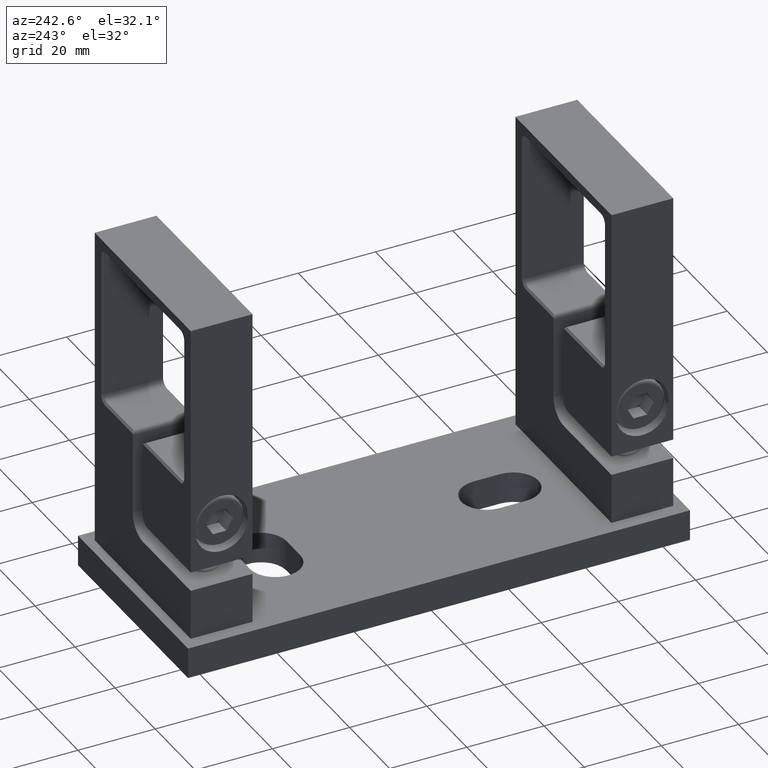
[diagram: clean part render]
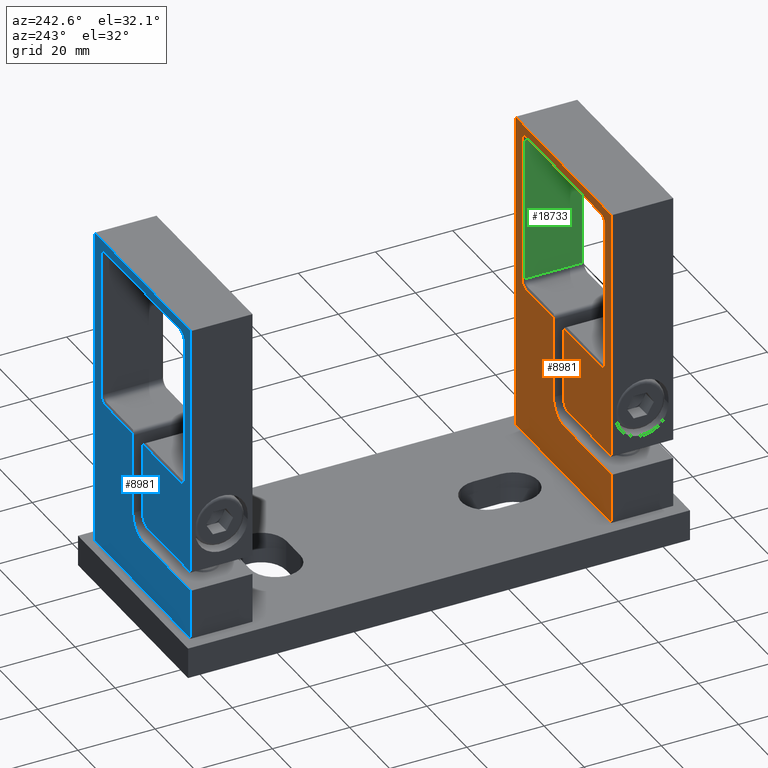
[diagram: same view with three faces highlighted in distinct colors, each labeled with its STEP entity id]
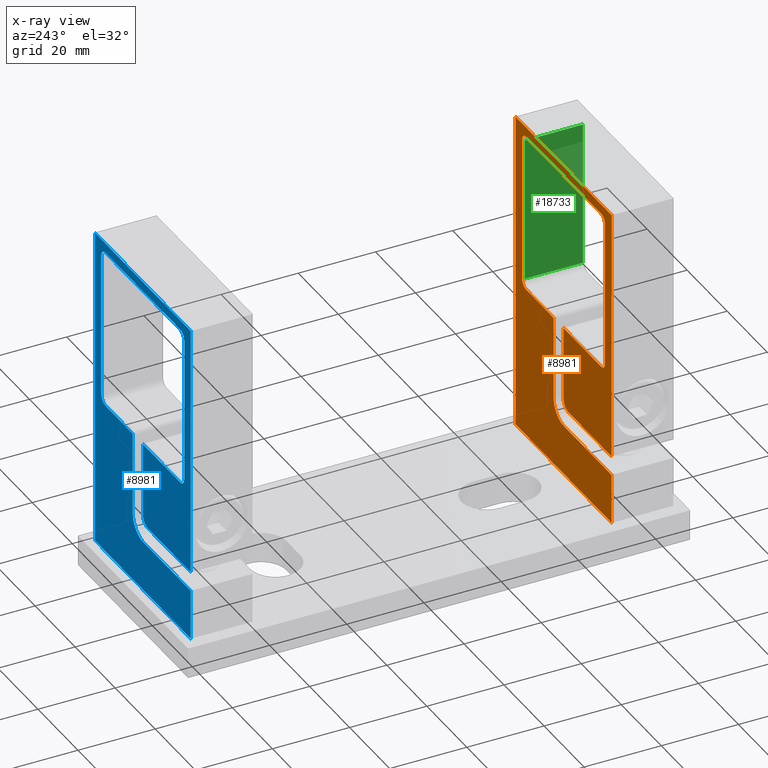
[diagram: x-ray of the same camera — body ghosted, the three highlighted faces saturated]
A machine part, auxiliary view with three faces highlighted in distinct colors.
The next image is the same camera in x-ray (body ghosted, the three faces saturated) — at least one of them is partly hidden behind the body in this view.
Their STEP definitions:

[orange] entity #8981 — the highlighted planar face has unit normal (0, 1, 0).
#47 = CARTESIAN_POINT ( 'NONE',  ( -7.999999999999992900, 20.50000000000001800, -3.081487911019577400E-030 ) ) ;
#51 = CARTESIAN_POINT ( 'NONE',  ( -8.000000000000000000, 41.50000000000000700, -20.74999999999992200 ) ) ;
#127 = LINE ( 'NONE', #12391, #13959 ) ;
#136 = AXIS2_PLACEMENT_3D ( 'NONE', #10202, #6392, #18962 ) ;
#158 = VERTEX_POINT ( 'NONE', #13842 ) ;
#331 = CIRCLE ( 'NONE', #15895, 2.000000000000012000 ) ;
#516 = VERTEX_POINT ( 'NONE', #565 ) ;
#565 = CARTESIAN_POINT ( 'NONE',  ( -7.999999999999986700, 83.49999999999998600, 24.00000000000000700 ) ) ;
#724 = LINE ( 'NONE', #12388, #19035 ) ;
#776 = EDGE_CURVE ( 'NONE', #8278, #15321, #17153, .T. ) ;
#828 = VERTEX_POINT ( 'NONE', #4010 ) ;
#855 = ORIENTED_EDGE ( 'NONE', *, *, #16438, .T. ) ;
#875 = CARTESIAN_POINT ( 'NONE',  ( -7.999999999999986700, 12.99999999999999800, 23.99999999999999300 ) ) ;
#1247 = CARTESIAN_POINT ( 'NONE',  ( -7.999999999999992900, 38.99999999999999300, -4.999999999999982200 ) ) ;
#1249 = VECTOR ( 'NONE', #20744, 1000.000000000000000 ) ;
#1380 = DIRECTION ( 'NONE',  ( 1.000000000000000000, -0.0000000000000000000, -0.0000000000000000000 ) ) ;
#1415 = CARTESIAN_POINT ( 'NONE',  ( -7.999999999999992900, 18.00000000000004300, -4.999999999999984900 ) ) ;
#1452 = CIRCLE ( 'NONE', #4162, 2.499999999999996000 ) ;
#1491 = CARTESIAN_POINT ( 'NONE',  ( -7.999999999999992900, 78.99999999999998600, 20.75000000000001400 ) ) ;
#1494 = CARTESIAN_POINT ( 'NONE',  ( -7.999999999999992900, 38.99999999999999300, -4.999999999999981300 ) ) ;
#1666 = CARTESIAN_POINT ( 'NONE',  ( -7.999999999999992900, 18.00000000000000400, -2.602085213965217000E-015 ) ) ;
#1727 = ORIENTED_EDGE ( 'NONE', *, *, #14107, .T. ) ;
#2451 = ORIENTED_EDGE ( 'NONE', *, *, #7532, .F. ) ;
#2458 = CIRCLE ( 'NONE', #15071, 2.000000000000012000 ) ;
#2579 = EDGE_CURVE ( 'NONE', #516, #10647, #724, .T. ) ;
#2659 = DIRECTION ( 'NONE',  ( 0.0000000000000000000, 3.909236002201266000E-016, -1.000000000000000000 ) ) ;
#2717 = CARTESIAN_POINT ( 'NONE',  ( -7.999999999999992900, 13.00000000000001100, 3.209238430557084300E-014 ) ) ;
#2856 = DIRECTION ( 'NONE',  ( 1.000000000000000000, -0.0000000000000000000, -0.0000000000000000000 ) ) ;
#2961 = VERTEX_POINT ( 'NONE', #12130 ) ;
#3020 = LINE ( 'NONE', #21508, #16578 ) ;
#3156 = EDGE_CURVE ( 'NONE', #16562, #828, #10618, .T. ) ;
#3199 = DIRECTION ( 'NONE',  ( 0.0000000000000000000, 0.0000000000000000000, 1.000000000000000000 ) ) ;
#3238 = CARTESIAN_POINT ( 'NONE',  ( -7.999999999999986700, 0.0000000000000000000, 24.00000000000000000 ) ) ;
#3351 = CIRCLE ( 'NONE', #15704, 0.9999999999999988900 ) ;
#3413 = EDGE_CURVE ( 'NONE', #8278, #12880, #14241, .T. ) ;
#3422 = VECTOR ( 'NONE', #12767, 1000.000000000000000 ) ;
#3639 = CARTESIAN_POINT ( 'NONE',  ( -7.999999999999992900, 39.49999999999997900, -5.133974596215535000 ) ) ;
#3844 = ORIENTED_EDGE ( 'NONE', *, *, #3413, .F. ) ;
#4010 = CARTESIAN_POINT ( 'NONE',  ( -7.999999999999992900, 39.00000000000000700, -3.081487911019577400E-030 ) ) ;
#4067 = VECTOR ( 'NONE', #10418, 1000.000000000000000 ) ;
#4162 = AXIS2_PLACEMENT_3D ( 'NONE', #11009, #20133, #7449 ) ;
#4545 = AXIS2_PLACEMENT_3D ( 'NONE', #8649, #1380, #21088 ) ;
#4730 = ORIENTED_EDGE ( 'NONE', *, *, #8043, .F. ) ;
#4788 = VECTOR ( 'NONE', #2659, 1000.000000000000000 ) ;
#5042 = CARTESIAN_POINT ( 'NONE',  ( -8.000000000000000000, 39.49999999999997900, -18.74999999999989300 ) ) ;
#5256 = DIRECTION ( 'NONE',  ( 0.0000000000000000000, -1.000000000000000000, -1.059373115100338400E-016 ) ) ;
#5692 = LINE ( 'NONE', #14291, #9367 ) ;
#5950 = CARTESIAN_POINT ( 'NONE',  ( -8.000000000000000000, 83.49999999999998600, -23.99999999999991800 ) ) ;
#6044 = ORIENTED_EDGE ( 'NONE', *, *, #15751, .F. ) ;
#6392 = DIRECTION ( 'NONE',  ( -1.000000000000000000, 0.0000000000000000000, 0.0000000000000000000 ) ) ;
#6435 = DIRECTION ( 'NONE',  ( 1.000000000000000000, 0.0000000000000000000, 0.0000000000000000000 ) ) ;
#6512 = LINE ( 'NONE', #15362, #4788 ) ;
#6533 = VECTOR ( 'NONE', #13878, 1000.000000000000000 ) ;
#6729 = EDGE_LOOP ( 'NONE', ( #1727, #20639, #17453, #15729, #15924, #14672, #21736, #20240, #6044, #2451, #14080, #4730, #16899, #9741, #3844, #9436, #13284, #22401, #10238, #11418, #855, #9876 ) ) ;
#6759 = VERTEX_POINT ( 'NONE', #8179 ) ;
#6836 = DIRECTION ( 'NONE',  ( 0.0000000000000000000, 0.0000000000000000000, -1.000000000000000000 ) ) ;
#7449 = DIRECTION ( 'NONE',  ( 0.0000000000000000000, 0.0000000000000000000, 1.000000000000000000 ) ) ;
#7532 = EDGE_CURVE ( 'NONE', #158, #9015, #19182, .T. ) ;
#7722 = LINE ( 'NONE', #21470, #15859 ) ;
#7783 = DIRECTION ( 'NONE',  ( 0.0000000000000000000, 0.0000000000000000000, 1.000000000000000000 ) ) ;
#7969 = VECTOR ( 'NONE', #6836, 1000.000000000000000 ) ;
#8043 = EDGE_CURVE ( 'NONE', #17749, #19170, #11916, .T. ) ;
#8179 = CARTESIAN_POINT ( 'NONE',  ( -7.999999999999952000, 81.00000000000001400, 18.74999999999996400 ) ) ;
#8251 = VERTEX_POINT ( 'NONE', #10716 ) ;
#8278 = VERTEX_POINT ( 'NONE', #3639 ) ;
#8649 = CARTESIAN_POINT ( 'NONE',  ( -8.000000000000000000, 78.99999999999998600, -18.74999999999990400 ) ) ;
#8981 = ADVANCED_FACE ( 'NONE', ( #17205 ), #18888, .T. ) ;
#9004 = EDGE_CURVE ( 'NONE', #12453, #17172, #6512, .T. ) ;
#9015 = VERTEX_POINT ( 'NONE', #21118 ) ;
#9160 = CARTESIAN_POINT ( 'NONE',  ( -7.999999999999992900, 39.49999999999999300, 0.1339745962155532700 ) ) ;
#9367 = VECTOR ( 'NONE', #10473, 1000.000000000000000 ) ;
#9384 = CARTESIAN_POINT ( 'NONE',  ( -7.999999999999986700, 18.00000000000000400, 24.00000000000000000 ) ) ;
#9436 = ORIENTED_EDGE ( 'NONE', *, *, #776, .T. ) ;
#9602 = EDGE_CURVE ( 'NONE', #828, #17172, #3351, .T. ) ;
#9693 = CARTESIAN_POINT ( 'NONE',  ( -7.999999999999992900, 39.00000000000000700, -5.999999999999982200 ) ) ;
#9741 = ORIENTED_EDGE ( 'NONE', *, *, #20960, .F. ) ;
#9876 = ORIENTED_EDGE ( 'NONE', *, *, #14280, .T. ) ;
#10197 = DIRECTION ( 'NONE',  ( 0.0000000000000000000, 0.0000000000000000000, 1.000000000000000000 ) ) ;
#10202 = CARTESIAN_POINT ( 'NONE',  ( -7.999999999999992900, 20.49999999999998900, 2.499999999999991100 ) ) ;
#10238 = ORIENTED_EDGE ( 'NONE', *, *, #14663, .T. ) ;
#10418 = DIRECTION ( 'NONE',  ( 0.0000000000000000000, 1.000000000000000000, 0.0000000000000000000 ) ) ;
#10422 = VERTEX_POINT ( 'NONE', #1491 ) ;
#10473 = DIRECTION ( 'NONE',  ( 0.0000000000000000000, 0.0000000000000000000, 1.000000000000000000 ) ) ;
#10544 = CARTESIAN_POINT ( 'NONE',  ( -7.999999999999992900, 20.50000000000001800, 4.336808689941987200E-016 ) ) ;
#10576 = EDGE_CURVE ( 'NONE', #19170, #158, #3020, .T. ) ;
#10618 = LINE ( 'NONE', #47, #4067 ) ;
#10647 = VERTEX_POINT ( 'NONE', #9384 ) ;
#10716 = CARTESIAN_POINT ( 'NONE',  ( -8.000000000000000000, 83.49999999999998600, -23.99999999999991800 ) ) ;
#11009 = CARTESIAN_POINT ( 'NONE',  ( -7.999999999999992900, 20.49999999999998900, 2.499999999999991100 ) ) ;
#11418 = ORIENTED_EDGE ( 'NONE', *, *, #16580, .T. ) ;
#11458 = LINE ( 'NONE', #5950, #21190 ) ;
#11916 = LINE ( 'NONE', #2717, #14972 ) ;
#12130 = CARTESIAN_POINT ( 'NONE',  ( -8.000000000000000000, 78.99999999999998600, -20.74999999999992200 ) ) ;
#12318 = CARTESIAN_POINT ( 'NONE',  ( -8.000000000000000000, 41.50000000000000700, -18.74999999999990400 ) ) ;
#12324 = CARTESIAN_POINT ( 'NONE',  ( -7.999999999999992900, 39.00000000000000700, 0.9999999999999983300 ) ) ;
#12388 = CARTESIAN_POINT ( 'NONE',  ( -7.999999999999986700, 83.49999999999998600, 24.00000000000000700 ) ) ;
#12391 = CARTESIAN_POINT ( 'NONE',  ( -7.999999999999992900, 41.50000000000000700, 20.75000000000001400 ) ) ;
#12453 = VERTEX_POINT ( 'NONE', #12539 ) ;
#12539 = CARTESIAN_POINT ( 'NONE',  ( -7.999999999999952000, 39.49999999999997900, 18.74999999999997200 ) ) ;
#12573 = LINE ( 'NONE', #15383, #1249 ) ;
#12767 = DIRECTION ( 'NONE',  ( 0.0000000000000000000, 1.000000000000000000, 0.0000000000000000000 ) ) ;
#12880 = VERTEX_POINT ( 'NONE', #1494 ) ;
#13004 = CARTESIAN_POINT ( 'NONE',  ( -8.000000000000000000, 78.99999999999998600, -20.74999999999992200 ) ) ;
#13284 = ORIENTED_EDGE ( 'NONE', *, *, #23098, .T. ) ;
#13621 = DIRECTION ( 'NONE',  ( 0.0000000000000000000, 0.0000000000000000000, 1.000000000000000000 ) ) ;
#13783 = VECTOR ( 'NONE', #16222, 1000.000000000000000 ) ;
#13842 = CARTESIAN_POINT ( 'NONE',  ( -7.999999999999986700, 0.0000000000000000000, 24.00000000000000000 ) ) ;
#13878 = DIRECTION ( 'NONE',  ( 0.0000000000000000000, -1.000000000000000000, -1.239088197126290100E-016 ) ) ;
#13959 = VECTOR ( 'NONE', #18250, 1000.000000000000000 ) ;
#14080 = ORIENTED_EDGE ( 'NONE', *, *, #10576, .F. ) ;
#14107 = EDGE_CURVE ( 'NONE', #20828, #12453, #15920, .T. ) ;
#14230 = DIRECTION ( 'NONE',  ( 2.736911063134408900E-048, 1.000000000000000000, -1.246507886929438800E-016 ) ) ;
#14241 = CIRCLE ( 'NONE', #20253, 0.9999999999999991100 ) ;
#14280 = EDGE_CURVE ( 'NONE', #10422, #20828, #127, .T. ) ;
#14290 = DIRECTION ( 'NONE',  ( 0.0000000000000000000, 0.0000000000000000000, -1.000000000000000000 ) ) ;
#14291 = CARTESIAN_POINT ( 'NONE',  ( -7.999999999999952000, 81.00000000000001400, 18.74999999999997200 ) ) ;
#14663 = EDGE_CURVE ( 'NONE', #2961, #20312, #19268, .T. ) ;
#14672 = ORIENTED_EDGE ( 'NONE', *, *, #17719, .F. ) ;
#14972 = VECTOR ( 'NONE', #15342, 1000.000000000000000 ) ;
#15071 = AXIS2_PLACEMENT_3D ( 'NONE', #12318, #17795, #3199 ) ;
#15321 = VERTEX_POINT ( 'NONE', #17572 ) ;
#15342 = DIRECTION ( 'NONE',  ( 0.0000000000000000000, -1.445602896647343800E-016, 1.000000000000000000 ) ) ;
#15362 = CARTESIAN_POINT ( 'NONE',  ( -7.999999999999992900, 39.49999999999999300, 1.000000000000005100 ) ) ;
#15383 = CARTESIAN_POINT ( 'NONE',  ( -7.999999999999986700, 18.00000000000000400, 24.00000000000000000 ) ) ;
#15402 = CARTESIAN_POINT ( 'NONE',  ( -7.999999999999952000, 78.99999999999998600, 18.74999999999997900 ) ) ;
#15520 = CARTESIAN_POINT ( 'NONE',  ( -7.999999999999992900, 41.50000000000000700, 20.75000000000001400 ) ) ;
#15704 = AXIS2_PLACEMENT_3D ( 'NONE', #12324, #17955, #23192 ) ;
#15729 = ORIENTED_EDGE ( 'NONE', *, *, #3156, .F. ) ;
#15751 = EDGE_CURVE ( 'NONE', #9015, #8251, #7722, .T. ) ;
#15856 = VERTEX_POINT ( 'NONE', #20310 ) ;
#15859 = VECTOR ( 'NONE', #14230, 1000.000000000000000 ) ;
#15895 = AXIS2_PLACEMENT_3D ( 'NONE', #15402, #2856, #22678 ) ;
#15920 = CIRCLE ( 'NONE', #21092, 2.000000000000012000 ) ;
#15924 = ORIENTED_EDGE ( 'NONE', *, *, #19885, .F. ) ;
#16222 = DIRECTION ( 'NONE',  ( 0.0000000000000000000, 0.0000000000000000000, -1.000000000000000000 ) ) ;
#16438 = EDGE_CURVE ( 'NONE', #6759, #10422, #331, .T. ) ;
#16562 = VERTEX_POINT ( 'NONE', #10544 ) ;
#16578 = VECTOR ( 'NONE', #23337, 1000.000000000000000 ) ;
#16580 = EDGE_CURVE ( 'NONE', #20312, #6759, #5692, .T. ) ;
#16899 = ORIENTED_EDGE ( 'NONE', *, *, #18833, .F. ) ;
#17153 = LINE ( 'NONE', #5042, #13783 ) ;
#17172 = VERTEX_POINT ( 'NONE', #9160 ) ;
#17205 = FACE_OUTER_BOUND ( 'NONE', #6729, .T. ) ;
#17453 = ORIENTED_EDGE ( 'NONE', *, *, #9602, .F. ) ;
#17572 = CARTESIAN_POINT ( 'NONE',  ( -8.000000000000000000, 39.49999999999997900, -18.74999999999989300 ) ) ;
#17643 = EDGE_CURVE ( 'NONE', #8251, #516, #11458, .T. ) ;
#17719 = EDGE_CURVE ( 'NONE', #10647, #15856, #12573, .T. ) ;
#17749 = VERTEX_POINT ( 'NONE', #18979 ) ;
#17795 = DIRECTION ( 'NONE',  ( 1.000000000000000000, -0.0000000000000000000, -0.0000000000000000000 ) ) ;
#17955 = DIRECTION ( 'NONE',  ( 1.000000000000000000, 0.0000000000000000000, 0.0000000000000000000 ) ) ;
#18250 = DIRECTION ( 'NONE',  ( 0.0000000000000000000, -1.000000000000000000, -0.0000000000000000000 ) ) ;
#18833 = EDGE_CURVE ( 'NONE', #20313, #17749, #21161, .T. ) ;
#18888 = PLANE ( 'NONE',  #136 ) ;
#18962 = DIRECTION ( 'NONE',  ( 0.0000000000000000000, 0.0000000000000000000, 1.000000000000000000 ) ) ;
#18979 = CARTESIAN_POINT ( 'NONE',  ( -7.999999999999992900, 13.00000000000001100, 3.384353667340022400E-014 ) ) ;
#19035 = VECTOR ( 'NONE', #5256, 1000.000000000000000 ) ;
#19170 = VERTEX_POINT ( 'NONE', #875 ) ;
#19182 = LINE ( 'NONE', #3238, #7969 ) ;
#19258 = DIRECTION ( 'NONE',  ( 1.000000000000000000, -0.0000000000000000000, -0.0000000000000000000 ) ) ;
#19268 = CIRCLE ( 'NONE', #4545, 2.000000000000012000 ) ;
#19297 = EDGE_CURVE ( 'NONE', #22520, #2961, #20587, .T. ) ;
#19525 = DIRECTION ( 'NONE',  ( -1.000000000000000000, 0.0000000000000000000, 0.0000000000000000000 ) ) ;
#19885 = EDGE_CURVE ( 'NONE', #15856, #16562, #1452, .T. ) ;
#20133 = DIRECTION ( 'NONE',  ( 1.000000000000000000, 0.0000000000000000000, 0.0000000000000000000 ) ) ;
#20240 = ORIENTED_EDGE ( 'NONE', *, *, #17643, .F. ) ;
#20253 = AXIS2_PLACEMENT_3D ( 'NONE', #9693, #6435, #13621 ) ;
#20310 = CARTESIAN_POINT ( 'NONE',  ( -7.999999999999992900, 18.00000000000000400, 2.500000000000008400 ) ) ;
#20312 = VERTEX_POINT ( 'NONE', #21037 ) ;
#20313 = VERTEX_POINT ( 'NONE', #1415 ) ;
#20587 = LINE ( 'NONE', #13004, #3422 ) ;
#20639 = ORIENTED_EDGE ( 'NONE', *, *, #9004, .T. ) ;
#20744 = DIRECTION ( 'NONE',  ( 0.0000000000000000000, 0.0000000000000000000, -1.000000000000000000 ) ) ;
#20828 = VERTEX_POINT ( 'NONE', #15520 ) ;
#20960 = EDGE_CURVE ( 'NONE', #12880, #20313, #22819, .T. ) ;
#21037 = CARTESIAN_POINT ( 'NONE',  ( -8.000000000000000000, 81.00000000000001400, -18.74999999999989300 ) ) ;
#21088 = DIRECTION ( 'NONE',  ( 0.0000000000000000000, 0.0000000000000000000, 1.000000000000000000 ) ) ;
#21092 = AXIS2_PLACEMENT_3D ( 'NONE', #22790, #19258, #10197 ) ;
#21118 = CARTESIAN_POINT ( 'NONE',  ( -8.000000000000000000, 0.0000000000000000000, -23.99999999999990400 ) ) ;
#21161 = CIRCLE ( 'NONE', #22850, 4.999999999999991100 ) ;
#21190 = VECTOR ( 'NONE', #7783, 1000.000000000000000 ) ;
#21470 = CARTESIAN_POINT ( 'NONE',  ( -8.000000000000000000, 0.0000000000000000000, -23.99999999999990400 ) ) ;
#21508 = CARTESIAN_POINT ( 'NONE',  ( -7.999999999999986700, 12.99999999999999800, 23.99999999999999300 ) ) ;
#21736 = ORIENTED_EDGE ( 'NONE', *, *, #2579, .F. ) ;
#22401 = ORIENTED_EDGE ( 'NONE', *, *, #19297, .T. ) ;
#22520 = VERTEX_POINT ( 'NONE', #51 ) ;
#22678 = DIRECTION ( 'NONE',  ( 0.0000000000000000000, 0.0000000000000000000, 1.000000000000000000 ) ) ;
#22790 = CARTESIAN_POINT ( 'NONE',  ( -7.999999999999952000, 41.50000000000000700, 18.74999999999997900 ) ) ;
#22819 = LINE ( 'NONE', #1247, #6533 ) ;
#22850 = AXIS2_PLACEMENT_3D ( 'NONE', #1666, #19525, #14290 ) ;
#23098 = EDGE_CURVE ( 'NONE', #15321, #22520, #2458, .T. ) ;
#23192 = DIRECTION ( 'NONE',  ( 0.0000000000000000000, 0.0000000000000000000, -1.000000000000000000 ) ) ;
#23337 = DIRECTION ( 'NONE',  ( 2.189528850507527200E-047, -1.000000000000000000, 5.337610695313239600E-016 ) ) ;

[blue] entity #8981 — the highlighted planar face has unit normal (0, 1, 0).
#47 = CARTESIAN_POINT ( 'NONE',  ( -7.999999999999992900, 20.50000000000001800, -3.081487911019577400E-030 ) ) ;
#51 = CARTESIAN_POINT ( 'NONE',  ( -8.000000000000000000, 41.50000000000000700, -20.74999999999992200 ) ) ;
#127 = LINE ( 'NONE', #12391, #13959 ) ;
#136 = AXIS2_PLACEMENT_3D ( 'NONE', #10202, #6392, #18962 ) ;
#158 = VERTEX_POINT ( 'NONE', #13842 ) ;
#331 = CIRCLE ( 'NONE', #15895, 2.000000000000012000 ) ;
#516 = VERTEX_POINT ( 'NONE', #565 ) ;
#565 = CARTESIAN_POINT ( 'NONE',  ( -7.999999999999986700, 83.49999999999998600, 24.00000000000000700 ) ) ;
#724 = LINE ( 'NONE', #12388, #19035 ) ;
#776 = EDGE_CURVE ( 'NONE', #8278, #15321, #17153, .T. ) ;
#828 = VERTEX_POINT ( 'NONE', #4010 ) ;
#855 = ORIENTED_EDGE ( 'NONE', *, *, #16438, .T. ) ;
#875 = CARTESIAN_POINT ( 'NONE',  ( -7.999999999999986700, 12.99999999999999800, 23.99999999999999300 ) ) ;
#1247 = CARTESIAN_POINT ( 'NONE',  ( -7.999999999999992900, 38.99999999999999300, -4.999999999999982200 ) ) ;
#1249 = VECTOR ( 'NONE', #20744, 1000.000000000000000 ) ;
#1380 = DIRECTION ( 'NONE',  ( 1.000000000000000000, -0.0000000000000000000, -0.0000000000000000000 ) ) ;
#1415 = CARTESIAN_POINT ( 'NONE',  ( -7.999999999999992900, 18.00000000000004300, -4.999999999999984900 ) ) ;
#1452 = CIRCLE ( 'NONE', #4162, 2.499999999999996000 ) ;
#1491 = CARTESIAN_POINT ( 'NONE',  ( -7.999999999999992900, 78.99999999999998600, 20.75000000000001400 ) ) ;
#1494 = CARTESIAN_POINT ( 'NONE',  ( -7.999999999999992900, 38.99999999999999300, -4.999999999999981300 ) ) ;
#1666 = CARTESIAN_POINT ( 'NONE',  ( -7.999999999999992900, 18.00000000000000400, -2.602085213965217000E-015 ) ) ;
#1727 = ORIENTED_EDGE ( 'NONE', *, *, #14107, .T. ) ;
#2451 = ORIENTED_EDGE ( 'NONE', *, *, #7532, .F. ) ;
#2458 = CIRCLE ( 'NONE', #15071, 2.000000000000012000 ) ;
#2579 = EDGE_CURVE ( 'NONE', #516, #10647, #724, .T. ) ;
#2659 = DIRECTION ( 'NONE',  ( 0.0000000000000000000, 3.909236002201266000E-016, -1.000000000000000000 ) ) ;
#2717 = CARTESIAN_POINT ( 'NONE',  ( -7.999999999999992900, 13.00000000000001100, 3.209238430557084300E-014 ) ) ;
#2856 = DIRECTION ( 'NONE',  ( 1.000000000000000000, -0.0000000000000000000, -0.0000000000000000000 ) ) ;
#2961 = VERTEX_POINT ( 'NONE', #12130 ) ;
#3020 = LINE ( 'NONE', #21508, #16578 ) ;
#3156 = EDGE_CURVE ( 'NONE', #16562, #828, #10618, .T. ) ;
#3199 = DIRECTION ( 'NONE',  ( 0.0000000000000000000, 0.0000000000000000000, 1.000000000000000000 ) ) ;
#3238 = CARTESIAN_POINT ( 'NONE',  ( -7.999999999999986700, 0.0000000000000000000, 24.00000000000000000 ) ) ;
#3351 = CIRCLE ( 'NONE', #15704, 0.9999999999999988900 ) ;
#3413 = EDGE_CURVE ( 'NONE', #8278, #12880, #14241, .T. ) ;
#3422 = VECTOR ( 'NONE', #12767, 1000.000000000000000 ) ;
#3639 = CARTESIAN_POINT ( 'NONE',  ( -7.999999999999992900, 39.49999999999997900, -5.133974596215535000 ) ) ;
#3844 = ORIENTED_EDGE ( 'NONE', *, *, #3413, .F. ) ;
#4010 = CARTESIAN_POINT ( 'NONE',  ( -7.999999999999992900, 39.00000000000000700, -3.081487911019577400E-030 ) ) ;
#4067 = VECTOR ( 'NONE', #10418, 1000.000000000000000 ) ;
#4162 = AXIS2_PLACEMENT_3D ( 'NONE', #11009, #20133, #7449 ) ;
#4545 = AXIS2_PLACEMENT_3D ( 'NONE', #8649, #1380, #21088 ) ;
#4730 = ORIENTED_EDGE ( 'NONE', *, *, #8043, .F. ) ;
#4788 = VECTOR ( 'NONE', #2659, 1000.000000000000000 ) ;
#5042 = CARTESIAN_POINT ( 'NONE',  ( -8.000000000000000000, 39.49999999999997900, -18.74999999999989300 ) ) ;
#5256 = DIRECTION ( 'NONE',  ( 0.0000000000000000000, -1.000000000000000000, -1.059373115100338400E-016 ) ) ;
#5692 = LINE ( 'NONE', #14291, #9367 ) ;
#5950 = CARTESIAN_POINT ( 'NONE',  ( -8.000000000000000000, 83.49999999999998600, -23.99999999999991800 ) ) ;
#6044 = ORIENTED_EDGE ( 'NONE', *, *, #15751, .F. ) ;
#6392 = DIRECTION ( 'NONE',  ( -1.000000000000000000, 0.0000000000000000000, 0.0000000000000000000 ) ) ;
#6435 = DIRECTION ( 'NONE',  ( 1.000000000000000000, 0.0000000000000000000, 0.0000000000000000000 ) ) ;
#6512 = LINE ( 'NONE', #15362, #4788 ) ;
#6533 = VECTOR ( 'NONE', #13878, 1000.000000000000000 ) ;
#6729 = EDGE_LOOP ( 'NONE', ( #1727, #20639, #17453, #15729, #15924, #14672, #21736, #20240, #6044, #2451, #14080, #4730, #16899, #9741, #3844, #9436, #13284, #22401, #10238, #11418, #855, #9876 ) ) ;
#6759 = VERTEX_POINT ( 'NONE', #8179 ) ;
#6836 = DIRECTION ( 'NONE',  ( 0.0000000000000000000, 0.0000000000000000000, -1.000000000000000000 ) ) ;
#7449 = DIRECTION ( 'NONE',  ( 0.0000000000000000000, 0.0000000000000000000, 1.000000000000000000 ) ) ;
#7532 = EDGE_CURVE ( 'NONE', #158, #9015, #19182, .T. ) ;
#7722 = LINE ( 'NONE', #21470, #15859 ) ;
#7783 = DIRECTION ( 'NONE',  ( 0.0000000000000000000, 0.0000000000000000000, 1.000000000000000000 ) ) ;
#7969 = VECTOR ( 'NONE', #6836, 1000.000000000000000 ) ;
#8043 = EDGE_CURVE ( 'NONE', #17749, #19170, #11916, .T. ) ;
#8179 = CARTESIAN_POINT ( 'NONE',  ( -7.999999999999952000, 81.00000000000001400, 18.74999999999996400 ) ) ;
#8251 = VERTEX_POINT ( 'NONE', #10716 ) ;
#8278 = VERTEX_POINT ( 'NONE', #3639 ) ;
#8649 = CARTESIAN_POINT ( 'NONE',  ( -8.000000000000000000, 78.99999999999998600, -18.74999999999990400 ) ) ;
#8981 = ADVANCED_FACE ( 'NONE', ( #17205 ), #18888, .T. ) ;
#9004 = EDGE_CURVE ( 'NONE', #12453, #17172, #6512, .T. ) ;
#9015 = VERTEX_POINT ( 'NONE', #21118 ) ;
#9160 = CARTESIAN_POINT ( 'NONE',  ( -7.999999999999992900, 39.49999999999999300, 0.1339745962155532700 ) ) ;
#9367 = VECTOR ( 'NONE', #10473, 1000.000000000000000 ) ;
#9384 = CARTESIAN_POINT ( 'NONE',  ( -7.999999999999986700, 18.00000000000000400, 24.00000000000000000 ) ) ;
#9436 = ORIENTED_EDGE ( 'NONE', *, *, #776, .T. ) ;
#9602 = EDGE_CURVE ( 'NONE', #828, #17172, #3351, .T. ) ;
#9693 = CARTESIAN_POINT ( 'NONE',  ( -7.999999999999992900, 39.00000000000000700, -5.999999999999982200 ) ) ;
#9741 = ORIENTED_EDGE ( 'NONE', *, *, #20960, .F. ) ;
#9876 = ORIENTED_EDGE ( 'NONE', *, *, #14280, .T. ) ;
#10197 = DIRECTION ( 'NONE',  ( 0.0000000000000000000, 0.0000000000000000000, 1.000000000000000000 ) ) ;
#10202 = CARTESIAN_POINT ( 'NONE',  ( -7.999999999999992900, 20.49999999999998900, 2.499999999999991100 ) ) ;
#10238 = ORIENTED_EDGE ( 'NONE', *, *, #14663, .T. ) ;
#10418 = DIRECTION ( 'NONE',  ( 0.0000000000000000000, 1.000000000000000000, 0.0000000000000000000 ) ) ;
#10422 = VERTEX_POINT ( 'NONE', #1491 ) ;
#10473 = DIRECTION ( 'NONE',  ( 0.0000000000000000000, 0.0000000000000000000, 1.000000000000000000 ) ) ;
#10544 = CARTESIAN_POINT ( 'NONE',  ( -7.999999999999992900, 20.50000000000001800, 4.336808689941987200E-016 ) ) ;
#10576 = EDGE_CURVE ( 'NONE', #19170, #158, #3020, .T. ) ;
#10618 = LINE ( 'NONE', #47, #4067 ) ;
#10647 = VERTEX_POINT ( 'NONE', #9384 ) ;
#10716 = CARTESIAN_POINT ( 'NONE',  ( -8.000000000000000000, 83.49999999999998600, -23.99999999999991800 ) ) ;
#11009 = CARTESIAN_POINT ( 'NONE',  ( -7.999999999999992900, 20.49999999999998900, 2.499999999999991100 ) ) ;
#11418 = ORIENTED_EDGE ( 'NONE', *, *, #16580, .T. ) ;
#11458 = LINE ( 'NONE', #5950, #21190 ) ;
#11916 = LINE ( 'NONE', #2717, #14972 ) ;
#12130 = CARTESIAN_POINT ( 'NONE',  ( -8.000000000000000000, 78.99999999999998600, -20.74999999999992200 ) ) ;
#12318 = CARTESIAN_POINT ( 'NONE',  ( -8.000000000000000000, 41.50000000000000700, -18.74999999999990400 ) ) ;
#12324 = CARTESIAN_POINT ( 'NONE',  ( -7.999999999999992900, 39.00000000000000700, 0.9999999999999983300 ) ) ;
#12388 = CARTESIAN_POINT ( 'NONE',  ( -7.999999999999986700, 83.49999999999998600, 24.00000000000000700 ) ) ;
#12391 = CARTESIAN_POINT ( 'NONE',  ( -7.999999999999992900, 41.50000000000000700, 20.75000000000001400 ) ) ;
#12453 = VERTEX_POINT ( 'NONE', #12539 ) ;
#12539 = CARTESIAN_POINT ( 'NONE',  ( -7.999999999999952000, 39.49999999999997900, 18.74999999999997200 ) ) ;
#12573 = LINE ( 'NONE', #15383, #1249 ) ;
#12767 = DIRECTION ( 'NONE',  ( 0.0000000000000000000, 1.000000000000000000, 0.0000000000000000000 ) ) ;
#12880 = VERTEX_POINT ( 'NONE', #1494 ) ;
#13004 = CARTESIAN_POINT ( 'NONE',  ( -8.000000000000000000, 78.99999999999998600, -20.74999999999992200 ) ) ;
#13284 = ORIENTED_EDGE ( 'NONE', *, *, #23098, .T. ) ;
#13621 = DIRECTION ( 'NONE',  ( 0.0000000000000000000, 0.0000000000000000000, 1.000000000000000000 ) ) ;
#13783 = VECTOR ( 'NONE', #16222, 1000.000000000000000 ) ;
#13842 = CARTESIAN_POINT ( 'NONE',  ( -7.999999999999986700, 0.0000000000000000000, 24.00000000000000000 ) ) ;
#13878 = DIRECTION ( 'NONE',  ( 0.0000000000000000000, -1.000000000000000000, -1.239088197126290100E-016 ) ) ;
#13959 = VECTOR ( 'NONE', #18250, 1000.000000000000000 ) ;
#14080 = ORIENTED_EDGE ( 'NONE', *, *, #10576, .F. ) ;
#14107 = EDGE_CURVE ( 'NONE', #20828, #12453, #15920, .T. ) ;
#14230 = DIRECTION ( 'NONE',  ( 2.736911063134408900E-048, 1.000000000000000000, -1.246507886929438800E-016 ) ) ;
#14241 = CIRCLE ( 'NONE', #20253, 0.9999999999999991100 ) ;
#14280 = EDGE_CURVE ( 'NONE', #10422, #20828, #127, .T. ) ;
#14290 = DIRECTION ( 'NONE',  ( 0.0000000000000000000, 0.0000000000000000000, -1.000000000000000000 ) ) ;
#14291 = CARTESIAN_POINT ( 'NONE',  ( -7.999999999999952000, 81.00000000000001400, 18.74999999999997200 ) ) ;
#14663 = EDGE_CURVE ( 'NONE', #2961, #20312, #19268, .T. ) ;
#14672 = ORIENTED_EDGE ( 'NONE', *, *, #17719, .F. ) ;
#14972 = VECTOR ( 'NONE', #15342, 1000.000000000000000 ) ;
#15071 = AXIS2_PLACEMENT_3D ( 'NONE', #12318, #17795, #3199 ) ;
#15321 = VERTEX_POINT ( 'NONE', #17572 ) ;
#15342 = DIRECTION ( 'NONE',  ( 0.0000000000000000000, -1.445602896647343800E-016, 1.000000000000000000 ) ) ;
#15362 = CARTESIAN_POINT ( 'NONE',  ( -7.999999999999992900, 39.49999999999999300, 1.000000000000005100 ) ) ;
#15383 = CARTESIAN_POINT ( 'NONE',  ( -7.999999999999986700, 18.00000000000000400, 24.00000000000000000 ) ) ;
#15402 = CARTESIAN_POINT ( 'NONE',  ( -7.999999999999952000, 78.99999999999998600, 18.74999999999997900 ) ) ;
#15520 = CARTESIAN_POINT ( 'NONE',  ( -7.999999999999992900, 41.50000000000000700, 20.75000000000001400 ) ) ;
#15704 = AXIS2_PLACEMENT_3D ( 'NONE', #12324, #17955, #23192 ) ;
#15729 = ORIENTED_EDGE ( 'NONE', *, *, #3156, .F. ) ;
#15751 = EDGE_CURVE ( 'NONE', #9015, #8251, #7722, .T. ) ;
#15856 = VERTEX_POINT ( 'NONE', #20310 ) ;
#15859 = VECTOR ( 'NONE', #14230, 1000.000000000000000 ) ;
#15895 = AXIS2_PLACEMENT_3D ( 'NONE', #15402, #2856, #22678 ) ;
#15920 = CIRCLE ( 'NONE', #21092, 2.000000000000012000 ) ;
#15924 = ORIENTED_EDGE ( 'NONE', *, *, #19885, .F. ) ;
#16222 = DIRECTION ( 'NONE',  ( 0.0000000000000000000, 0.0000000000000000000, -1.000000000000000000 ) ) ;
#16438 = EDGE_CURVE ( 'NONE', #6759, #10422, #331, .T. ) ;
#16562 = VERTEX_POINT ( 'NONE', #10544 ) ;
#16578 = VECTOR ( 'NONE', #23337, 1000.000000000000000 ) ;
#16580 = EDGE_CURVE ( 'NONE', #20312, #6759, #5692, .T. ) ;
#16899 = ORIENTED_EDGE ( 'NONE', *, *, #18833, .F. ) ;
#17153 = LINE ( 'NONE', #5042, #13783 ) ;
#17172 = VERTEX_POINT ( 'NONE', #9160 ) ;
#17205 = FACE_OUTER_BOUND ( 'NONE', #6729, .T. ) ;
#17453 = ORIENTED_EDGE ( 'NONE', *, *, #9602, .F. ) ;
#17572 = CARTESIAN_POINT ( 'NONE',  ( -8.000000000000000000, 39.49999999999997900, -18.74999999999989300 ) ) ;
#17643 = EDGE_CURVE ( 'NONE', #8251, #516, #11458, .T. ) ;
#17719 = EDGE_CURVE ( 'NONE', #10647, #15856, #12573, .T. ) ;
#17749 = VERTEX_POINT ( 'NONE', #18979 ) ;
#17795 = DIRECTION ( 'NONE',  ( 1.000000000000000000, -0.0000000000000000000, -0.0000000000000000000 ) ) ;
#17955 = DIRECTION ( 'NONE',  ( 1.000000000000000000, 0.0000000000000000000, 0.0000000000000000000 ) ) ;
#18250 = DIRECTION ( 'NONE',  ( 0.0000000000000000000, -1.000000000000000000, -0.0000000000000000000 ) ) ;
#18833 = EDGE_CURVE ( 'NONE', #20313, #17749, #21161, .T. ) ;
#18888 = PLANE ( 'NONE',  #136 ) ;
#18962 = DIRECTION ( 'NONE',  ( 0.0000000000000000000, 0.0000000000000000000, 1.000000000000000000 ) ) ;
#18979 = CARTESIAN_POINT ( 'NONE',  ( -7.999999999999992900, 13.00000000000001100, 3.384353667340022400E-014 ) ) ;
#19035 = VECTOR ( 'NONE', #5256, 1000.000000000000000 ) ;
#19170 = VERTEX_POINT ( 'NONE', #875 ) ;
#19182 = LINE ( 'NONE', #3238, #7969 ) ;
#19258 = DIRECTION ( 'NONE',  ( 1.000000000000000000, -0.0000000000000000000, -0.0000000000000000000 ) ) ;
#19268 = CIRCLE ( 'NONE', #4545, 2.000000000000012000 ) ;
#19297 = EDGE_CURVE ( 'NONE', #22520, #2961, #20587, .T. ) ;
#19525 = DIRECTION ( 'NONE',  ( -1.000000000000000000, 0.0000000000000000000, 0.0000000000000000000 ) ) ;
#19885 = EDGE_CURVE ( 'NONE', #15856, #16562, #1452, .T. ) ;
#20133 = DIRECTION ( 'NONE',  ( 1.000000000000000000, 0.0000000000000000000, 0.0000000000000000000 ) ) ;
#20240 = ORIENTED_EDGE ( 'NONE', *, *, #17643, .F. ) ;
#20253 = AXIS2_PLACEMENT_3D ( 'NONE', #9693, #6435, #13621 ) ;
#20310 = CARTESIAN_POINT ( 'NONE',  ( -7.999999999999992900, 18.00000000000000400, 2.500000000000008400 ) ) ;
#20312 = VERTEX_POINT ( 'NONE', #21037 ) ;
#20313 = VERTEX_POINT ( 'NONE', #1415 ) ;
#20587 = LINE ( 'NONE', #13004, #3422 ) ;
#20639 = ORIENTED_EDGE ( 'NONE', *, *, #9004, .T. ) ;
#20744 = DIRECTION ( 'NONE',  ( 0.0000000000000000000, 0.0000000000000000000, -1.000000000000000000 ) ) ;
#20828 = VERTEX_POINT ( 'NONE', #15520 ) ;
#20960 = EDGE_CURVE ( 'NONE', #12880, #20313, #22819, .T. ) ;
#21037 = CARTESIAN_POINT ( 'NONE',  ( -8.000000000000000000, 81.00000000000001400, -18.74999999999989300 ) ) ;
#21088 = DIRECTION ( 'NONE',  ( 0.0000000000000000000, 0.0000000000000000000, 1.000000000000000000 ) ) ;
#21092 = AXIS2_PLACEMENT_3D ( 'NONE', #22790, #19258, #10197 ) ;
#21118 = CARTESIAN_POINT ( 'NONE',  ( -8.000000000000000000, 0.0000000000000000000, -23.99999999999990400 ) ) ;
#21161 = CIRCLE ( 'NONE', #22850, 4.999999999999991100 ) ;
#21190 = VECTOR ( 'NONE', #7783, 1000.000000000000000 ) ;
#21470 = CARTESIAN_POINT ( 'NONE',  ( -8.000000000000000000, 0.0000000000000000000, -23.99999999999990400 ) ) ;
#21508 = CARTESIAN_POINT ( 'NONE',  ( -7.999999999999986700, 12.99999999999999800, 23.99999999999999300 ) ) ;
#21736 = ORIENTED_EDGE ( 'NONE', *, *, #2579, .F. ) ;
#22401 = ORIENTED_EDGE ( 'NONE', *, *, #19297, .T. ) ;
#22520 = VERTEX_POINT ( 'NONE', #51 ) ;
#22678 = DIRECTION ( 'NONE',  ( 0.0000000000000000000, 0.0000000000000000000, 1.000000000000000000 ) ) ;
#22790 = CARTESIAN_POINT ( 'NONE',  ( -7.999999999999952000, 41.50000000000000700, 18.74999999999997900 ) ) ;
#22819 = LINE ( 'NONE', #1247, #6533 ) ;
#22850 = AXIS2_PLACEMENT_3D ( 'NONE', #1666, #19525, #14290 ) ;
#23098 = EDGE_CURVE ( 'NONE', #15321, #22520, #2458, .T. ) ;
#23192 = DIRECTION ( 'NONE',  ( 0.0000000000000000000, 0.0000000000000000000, -1.000000000000000000 ) ) ;
#23337 = DIRECTION ( 'NONE',  ( 2.189528850507527200E-047, -1.000000000000000000, 5.337610695313239600E-016 ) ) ;

[green] entity #18733 — the highlighted planar face has unit normal (1, -0, 0).
#240 = VERTEX_POINT ( 'NONE', #17830 ) ;
#946 = CARTESIAN_POINT ( 'NONE',  ( 7.999999999999979600, 78.99999999999998600, -20.24999999999995000 ) ) ;
#1238 = VECTOR ( 'NONE', #5039, 1000.000000000000000 ) ;
#1582 = VERTEX_POINT ( 'NONE', #21289 ) ;
#4003 = CARTESIAN_POINT ( 'NONE',  ( -7.499999999999985800, 78.99999999999998600, -20.24999999999992900 ) ) ;
#4056 = EDGE_CURVE ( 'NONE', #1582, #11652, #8877, .T. ) ;
#4961 = CARTESIAN_POINT ( 'NONE',  ( 7.999999999999979600, 41.50000000000000700, -20.24999999999995000 ) ) ;
#5039 = DIRECTION ( 'NONE',  ( -1.000000000000000000, 0.0000000000000000000, 0.0000000000000000000 ) ) ;
#5065 = ORIENTED_EDGE ( 'NONE', *, *, #19178, .T. ) ;
#5298 = DIRECTION ( 'NONE',  ( -1.000000000000000000, 0.0000000000000000000, 0.0000000000000000000 ) ) ;
#5523 = CARTESIAN_POINT ( 'NONE',  ( -7.499999999999985800, 41.50000000000000700, -20.24999999999992900 ) ) ;
#6159 = DIRECTION ( 'NONE',  ( 0.0000000000000000000, -1.000000000000000000, 0.0000000000000000000 ) ) ;
#7140 = CARTESIAN_POINT ( 'NONE',  ( 7.999999999999979600, 78.99999999999998600, -20.24999999999995000 ) ) ;
#7422 = ORIENTED_EDGE ( 'NONE', *, *, #20184, .T. ) ;
#8877 = LINE ( 'NONE', #4961, #1238 ) ;
#9989 = VECTOR ( 'NONE', #22420, 1000.000000000000000 ) ;
#10295 = LINE ( 'NONE', #20282, #17870 ) ;
#11652 = VERTEX_POINT ( 'NONE', #5523 ) ;
#11717 = ORIENTED_EDGE ( 'NONE', *, *, #4056, .F. ) ;
#13883 = DIRECTION ( 'NONE',  ( -1.000000000000000000, 0.0000000000000000000, 0.0000000000000000000 ) ) ;
#15372 = CARTESIAN_POINT ( 'NONE',  ( 7.500000000000000000, 78.99999999999998600, -20.24999999999992900 ) ) ;
#16936 = LINE ( 'NONE', #946, #18066 ) ;
#17830 = CARTESIAN_POINT ( 'NONE',  ( 7.500000000000000000, 78.99999999999998600, -20.24999999999992900 ) ) ;
#17870 = VECTOR ( 'NONE', #6159, 1000.000000000000000 ) ;
#18066 = VECTOR ( 'NONE', #13883, 1000.000000000000000 ) ;
#18273 = EDGE_CURVE ( 'NONE', #19921, #11652, #10295, .T. ) ;
#18398 = LINE ( 'NONE', #15372, #9989 ) ;
#18733 = ADVANCED_FACE ( 'NONE', ( #19233 ), #23070, .F. ) ;
#19178 = EDGE_CURVE ( 'NONE', #1582, #240, #18398, .T. ) ;
#19233 = FACE_OUTER_BOUND ( 'NONE', #20351, .T. ) ;
#19921 = VERTEX_POINT ( 'NONE', #4003 ) ;
#20184 = EDGE_CURVE ( 'NONE', #240, #19921, #16936, .T. ) ;
#20282 = CARTESIAN_POINT ( 'NONE',  ( -7.499999999999985800, 41.50000000000000700, -20.24999999999992900 ) ) ;
#20351 = EDGE_LOOP ( 'NONE', ( #7422, #21501, #11717, #5065 ) ) ;
#21289 = CARTESIAN_POINT ( 'NONE',  ( 7.500000000000000000, 41.50000000000000700, -20.24999999999992900 ) ) ;
#21460 = DIRECTION ( 'NONE',  ( 0.0000000000000000000, 0.0000000000000000000, -1.000000000000000000 ) ) ;
#21501 = ORIENTED_EDGE ( 'NONE', *, *, #18273, .T. ) ;
#21937 = AXIS2_PLACEMENT_3D ( 'NONE', #7140, #21460, #5298 ) ;
#22420 = DIRECTION ( 'NONE',  ( 0.0000000000000000000, 1.000000000000000000, 0.0000000000000000000 ) ) ;
#23070 = PLANE ( 'NONE',  #21937 ) ;